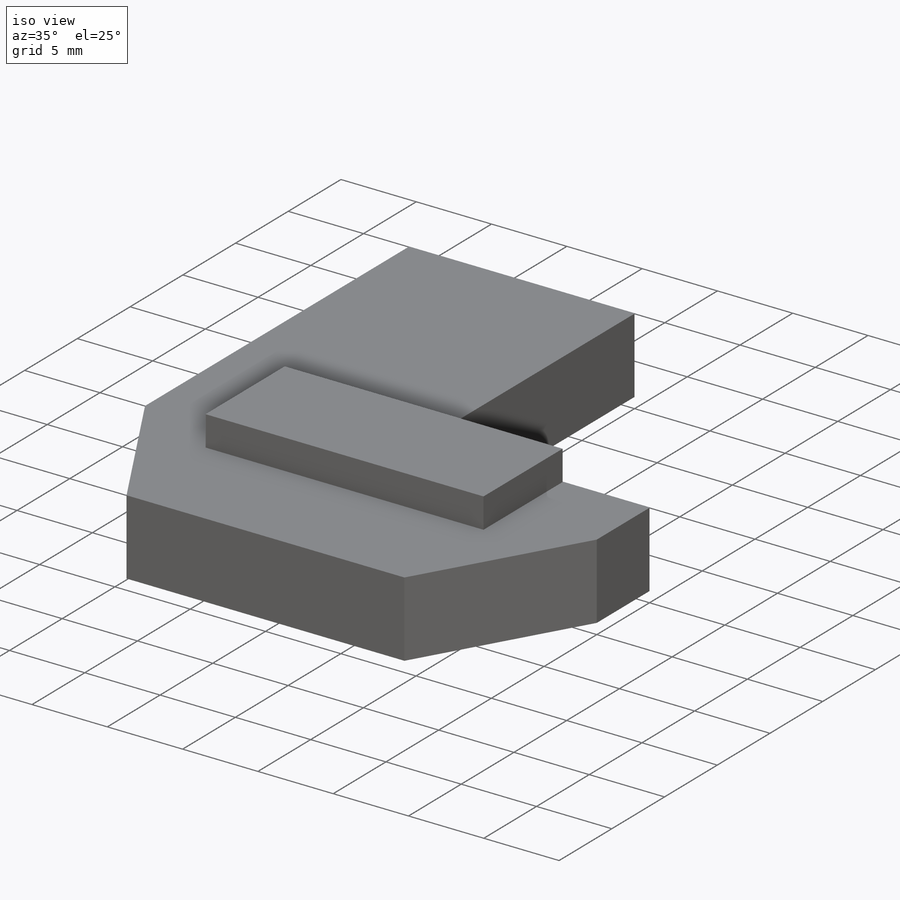
[diagram: iso view]
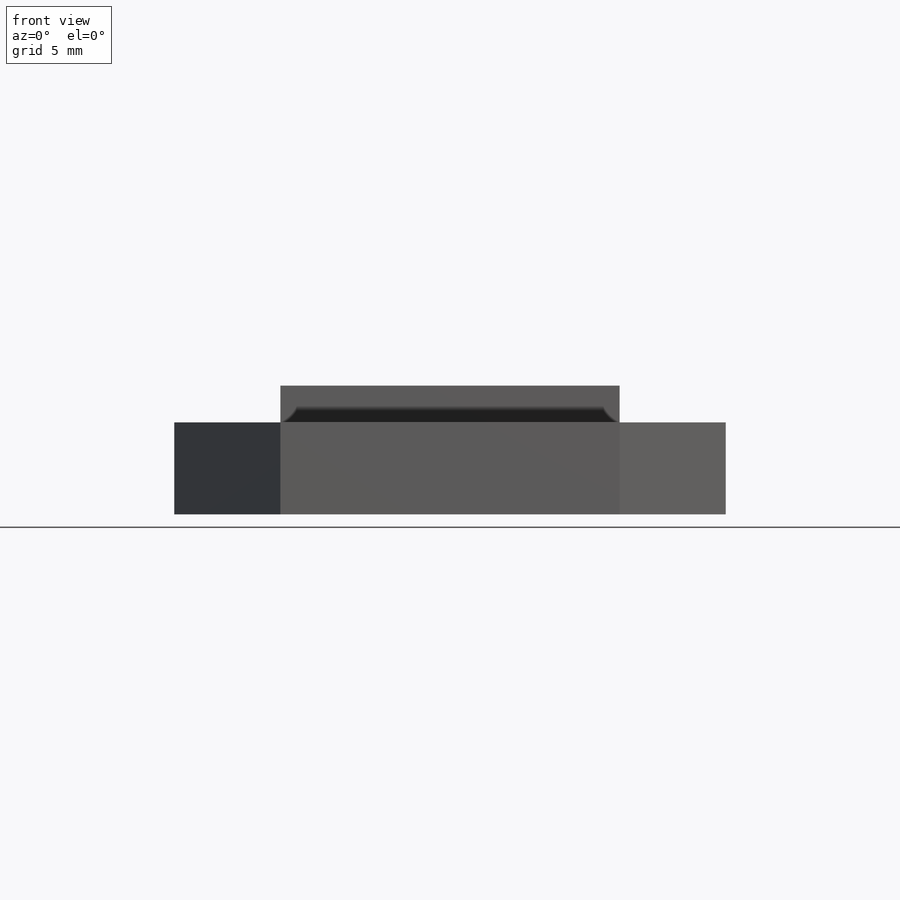
[diagram: front view]
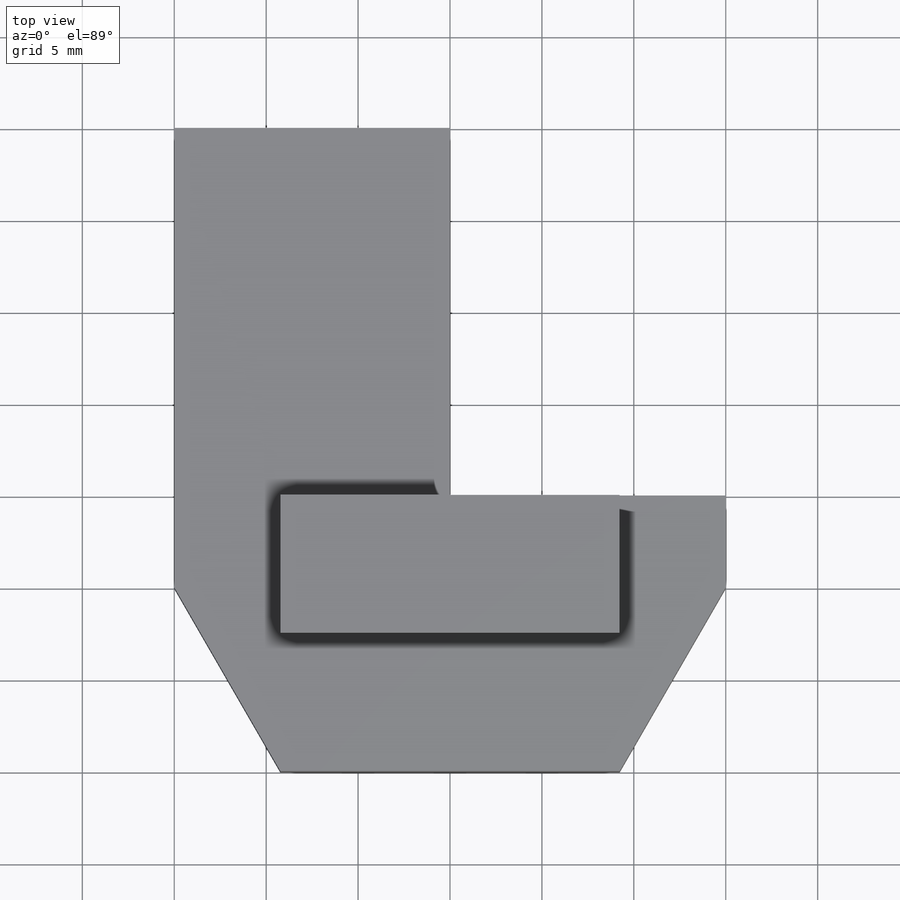
[diagram: top view]
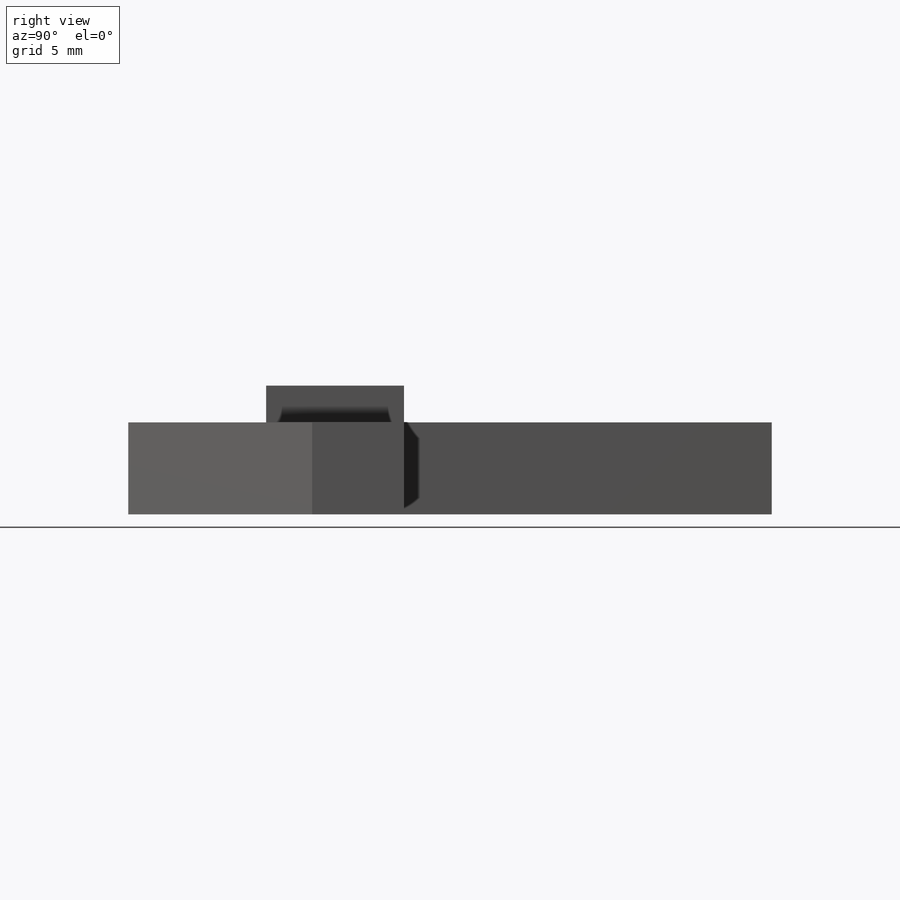
[diagram: right view]
SOLIDWORKS PART (.sldprt)
format: sldprt  version: not decoded by parser v0  size: 176,128 bytes
history: native  units: mm
features: plane x3, sketch x3, extrude x2, material x1, cut_extrude x1 (+9 scaffold rows collapsed)
feature tree (19):
  scaffold x9  (default folders/planes/origin — collapsed)
  material  "Material <not specified>"
  plane  "Ön Düzlem"
  plane  "Üst Düzlem"
  plane  "Sağ Düzlem"
  sketch  "Sketch1"  dims[c1.D1=25.0mm c1.D2=40.0mm c1.D3=~31.075228mm c2.D3=60.0deg c2.D4=~31.075228mm c3.D4=60.0deg c3.D5=25.0mm c3.D6=20.0mm c3.D7=20.0mm c3.D8=~16.000984mm]
  extrude  "Boss-Extrude1"  Depth=5mm
  sketch  "Sketch2"  dims[c1.D1=15.0mm c1.D2=5.0mm c1.D3=~15.502938mm c2.D3=60.0deg c2.D4=~17.814779mm c3.D4=60.0deg c3.D5=15.0mm c3.D6=~16.969299mm c3.D7=10.0mm c3.D8=~5.692482mm c4.D6=5.0mm c4.D8=~9.605931mm]
  cut_extrude  "Cut-Extrude1"  [1 undecoded]
  sketch  "Sketch3"  dims[D1=0.0mm D2=0.0mm D3=7.5mm]
  extrude  "Boss-Extrude2"  Depth=2mm
decode coverage: 5 of 6 modeling features carry decoded parameters
note: ~ marks probable driven/reference dimensions
note: 1 parameter value undecoded
note: suppression state not decoded; provenance and decode notes live in map.json
